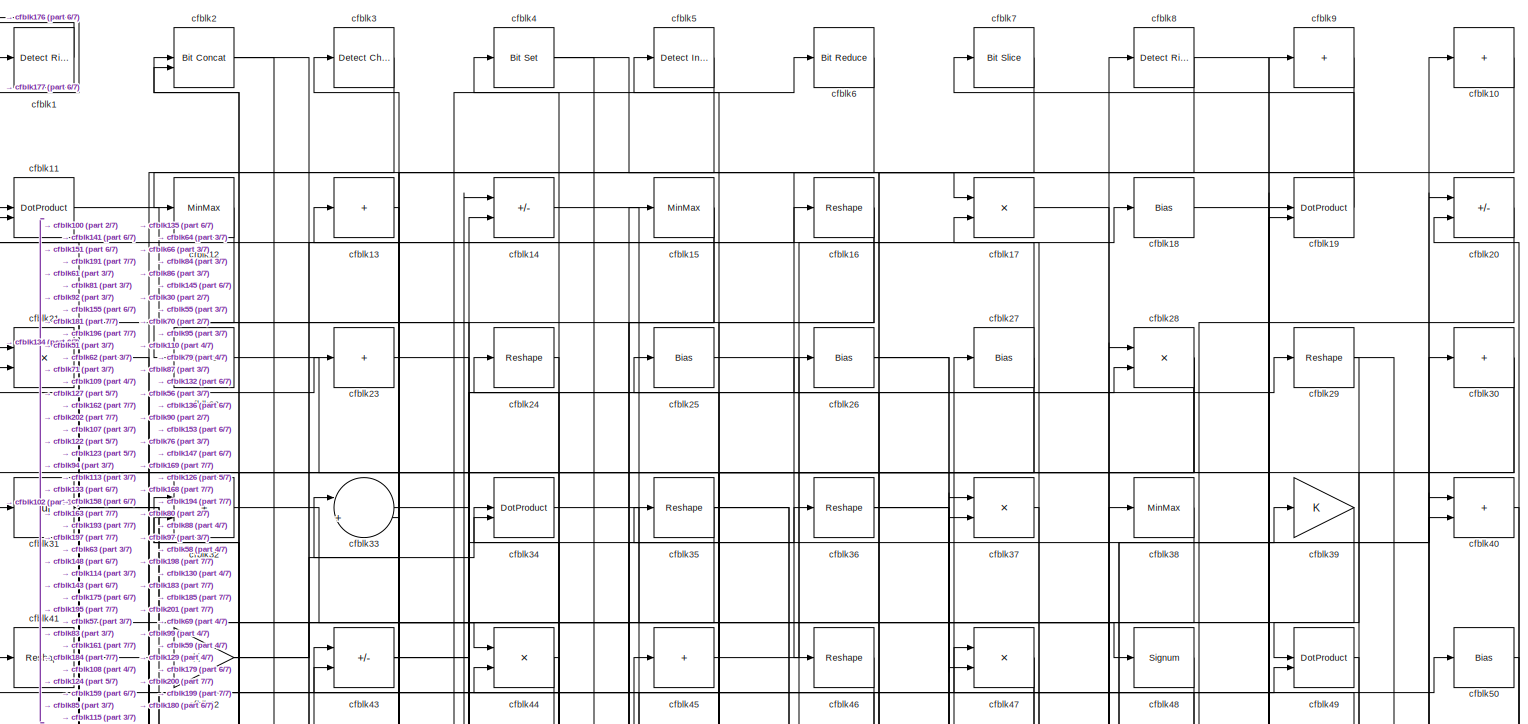
[diagram: root canvas - part 1/7, full width, top band]
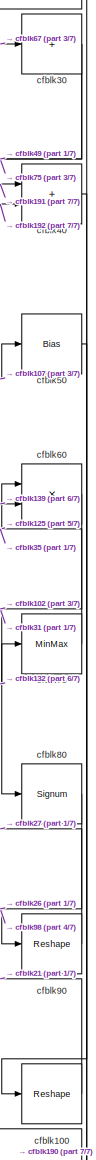
[diagram: root canvas - part 2/7, top right region]
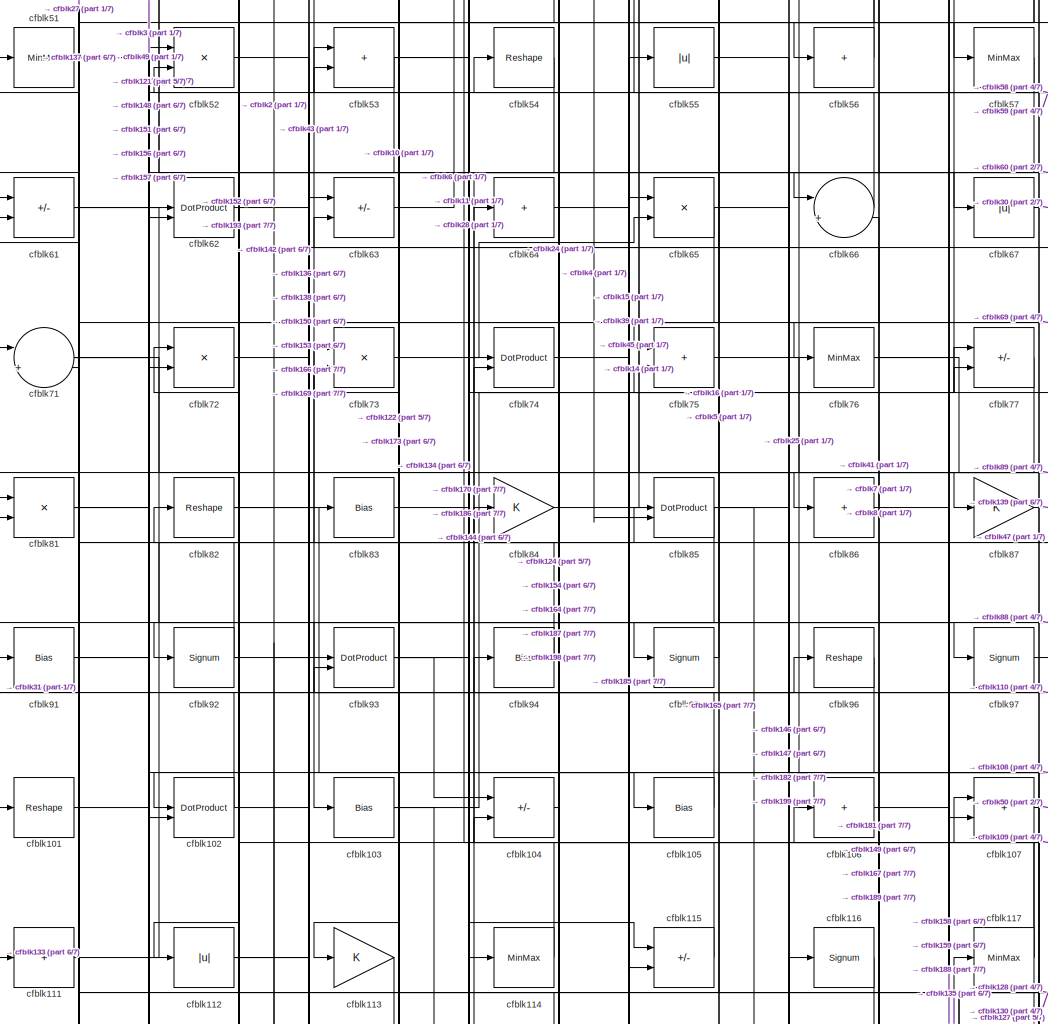
[diagram: root canvas - part 3/7, central region]
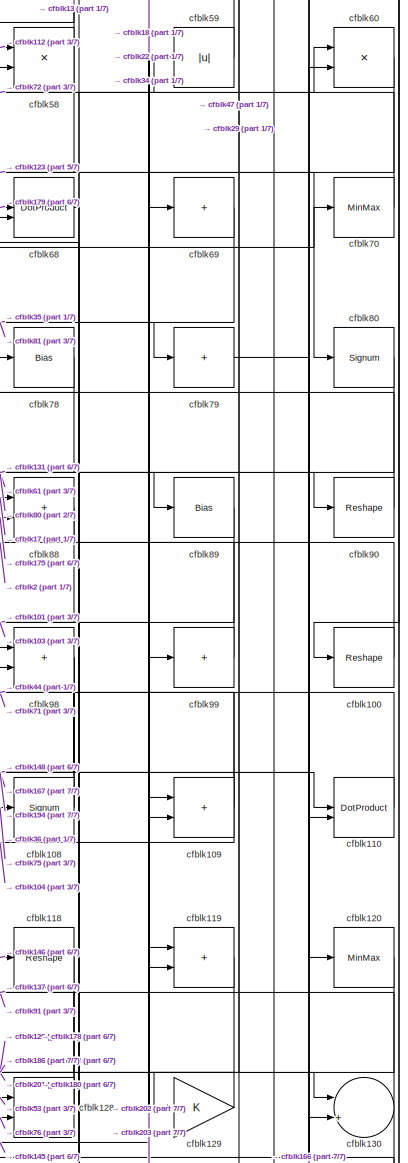
[diagram: root canvas - part 4/7, middle right region]
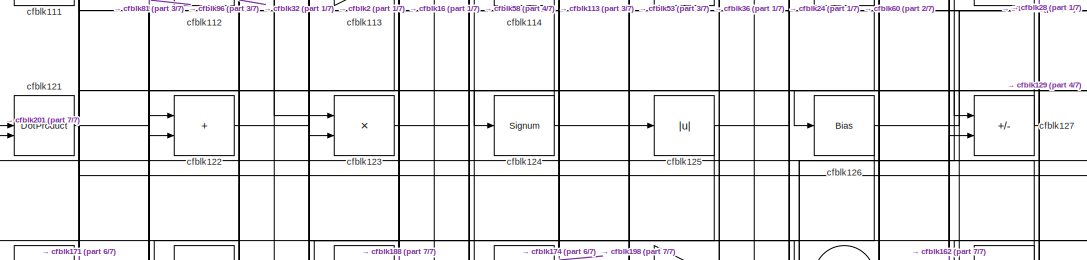
[diagram: root canvas - part 5/7, central region]
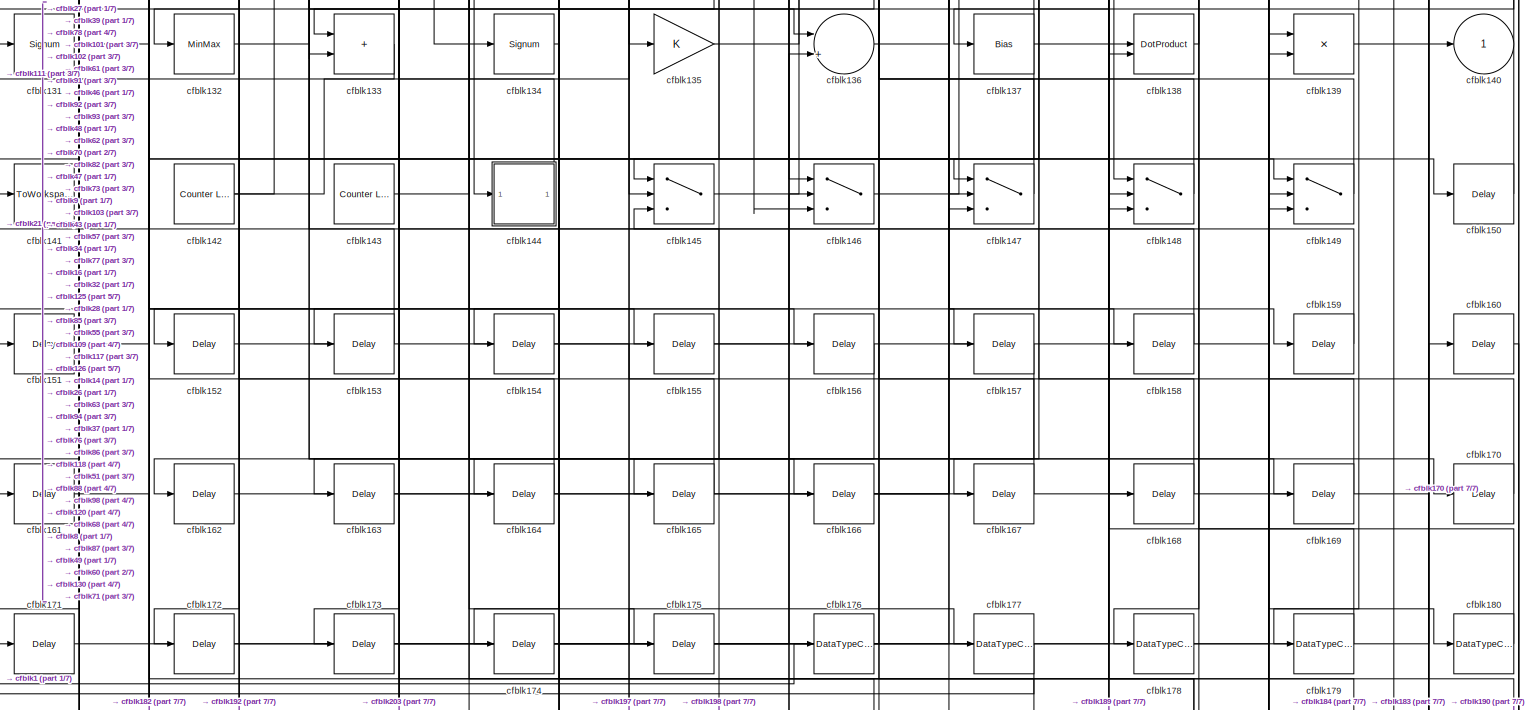
[diagram: root canvas - part 6/7, full width, bottom band]
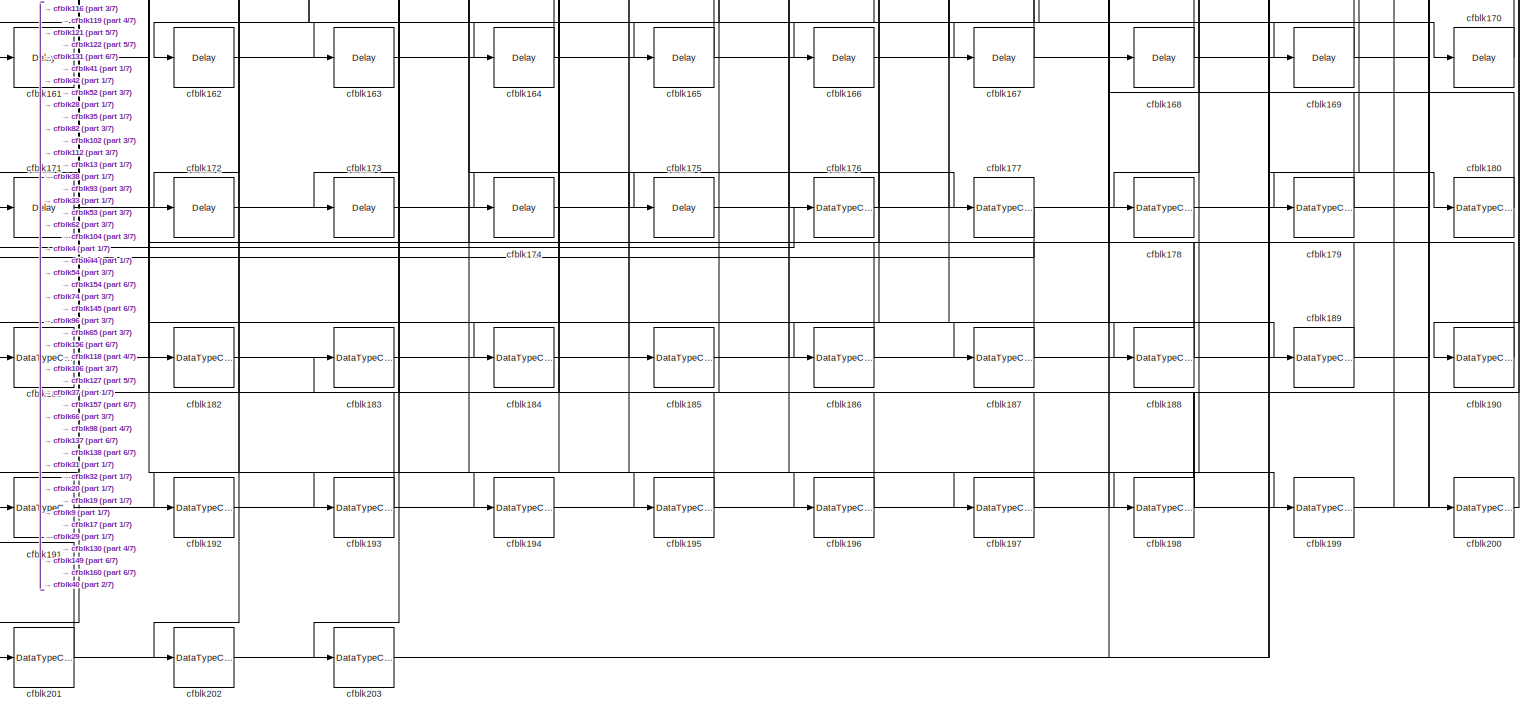
[diagram: root canvas - part 7/7, full width, bottom band]
MODEL slx_e7d8bf7e9333
KIND model
CONFIG AbsTol = auto
CONFIG EnableMultiTasking = off
CONFIG FixedStep = auto
CONFIG MaxStep = auto
CONFIG MinStep = auto
CONFIG RelTol = 1e-3
CONFIG SampleTimeConstraint = Unconstrained
CONFIG SolverName = VariableStepAuto
CONFIG StartTime = 0.0
CONFIG StopTime = 10.0
BLOCK [Reference] cfblk1  REF=hdlsllib/Logic and Bit
Operations/Detect Rise
Nonnegative
  SourceBlock = hdlsllib/Logic and Bit\nOperations/Detect Rise\nNonnegative
  SourceType = Detect Rise Nonnegative
BLOCK [Sum] cfblk10
  IconShape = rectangular
  Inputs = +
BLOCK [Reshape] cfblk100
BLOCK [Reshape] cfblk101
BLOCK [DotProduct] cfblk102
  OutDataTypeStr = Inherit: Inherit via internal rule
BLOCK [Bias] cfblk103
  Bias = 0.0
  SaturateOnIntegerOverflow = off
BLOCK [Sum] cfblk104
  IconShape = rectangular
  Inputs = +-
BLOCK [Bias] cfblk105
  Bias = 0.0
  SaturateOnIntegerOverflow = off
BLOCK [Sum] cfblk106
  IconShape = rectangular
  Inputs = +
BLOCK [Sum] cfblk107
  IconShape = rectangular
BLOCK [Signum] cfblk108
BLOCK [Sum] cfblk109
  IconShape = rectangular
BLOCK [DotProduct] cfblk11
  OutDataTypeStr = Inherit: Inherit via internal rule
BLOCK [DotProduct] cfblk110
  OutDataTypeStr = Inherit: Inherit via internal rule
BLOCK [Sum] cfblk111
  IconShape = rectangular
  Inputs = +
BLOCK [Abs] cfblk112
  SaturateOnIntegerOverflow = off
BLOCK [Gain] cfblk113
BLOCK [MinMax] cfblk114
BLOCK [Sum] cfblk115
  IconShape = rectangular
  Inputs = +-
BLOCK [Signum] cfblk116
BLOCK [MinMax] cfblk117
BLOCK [Reshape] cfblk118
BLOCK [Sum] cfblk119
  IconShape = rectangular
BLOCK [MinMax] cfblk12
BLOCK [MinMax] cfblk120
BLOCK [DotProduct] cfblk121
  OutDataTypeStr = Inherit: Inherit via internal rule
BLOCK [Sum] cfblk122
  IconShape = rectangular
BLOCK [Product] cfblk123
  Inputs = */
  RndMeth = Zero
  SaturateOnIntegerOverflow = on
BLOCK [Signum] cfblk124
BLOCK [Abs] cfblk125
  SaturateOnIntegerOverflow = off
BLOCK [Bias] cfblk126
  Bias = 0.0
  SaturateOnIntegerOverflow = off
BLOCK [Sum] cfblk127
  IconShape = rectangular
  Inputs = +-
BLOCK [Sum] cfblk128
  IconShape = rectangular
BLOCK [Gain] cfblk129
BLOCK [Sum] cfblk13
  IconShape = rectangular
  Inputs = +
BLOCK [Sum] cfblk130
  Inputs = |++
BLOCK [Signum] cfblk131
BLOCK [MinMax] cfblk132
BLOCK [Sum] cfblk133
  IconShape = rectangular
BLOCK [Signum] cfblk134
BLOCK [Gain] cfblk135
BLOCK [Sum] cfblk136
  Inputs = |++
BLOCK [Bias] cfblk137
  Bias = 0.0
  SaturateOnIntegerOverflow = off
BLOCK [DotProduct] cfblk138
  OutDataTypeStr = Inherit: Inherit via internal rule
BLOCK [Product] cfblk139
  Inputs = */
  RndMeth = Zero
  SaturateOnIntegerOverflow = on
BLOCK [Sum] cfblk14
  IconShape = rectangular
  Inputs = +-
BLOCK [Outport] cfblk140
  VectorParamsAs1DForOutWhenUnconnected = off
BLOCK [ToWorkspace] cfblk141
  MaxDataPoints = inf
  SampleTime = -1
  SaveFormat = Timeseries
  VariableName = simout
BLOCK [Reference] cfblk142  REF=hdlsllib/Sources/Counter
Limited
  SourceBlock = hdlsllib/Sources/Counter\nLimited
  SourceType = Counter Limited
BLOCK [Reference] cfblk143  REF=hdlsllib/Sources/Counter
Limited
  SourceBlock = hdlsllib/Sources/Counter\nLimited
  SourceType = Counter Limited
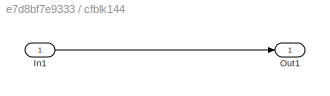
BLOCK [SubSystem] cfblk144
  LibrarySourceBlock = hdlsllib/Ports &\nSubsystems/Subsystem
BLOCK [Inport] cfblk144/In1
BLOCK [Outport] cfblk144/Out1
BLOCK [Switch] cfblk145
  InputSameDT = off
  SaturateOnIntegerOverflow = off
BLOCK [Switch] cfblk146
  InputSameDT = off
  SaturateOnIntegerOverflow = off
BLOCK [Switch] cfblk147
  InputSameDT = off
  SaturateOnIntegerOverflow = off
BLOCK [Switch] cfblk148
  InputSameDT = off
  SaturateOnIntegerOverflow = off
BLOCK [Switch] cfblk149
  InputSameDT = off
  SaturateOnIntegerOverflow = off
BLOCK [MinMax] cfblk15
BLOCK [Delay] cfblk150
  InputPortMap = u0
  SampleTime = 1
BLOCK [Delay] cfblk151
  InputPortMap = u0
  SampleTime = 1
BLOCK [Delay] cfblk152
  InputPortMap = u0
  SampleTime = 1
BLOCK [Delay] cfblk153
  InputPortMap = u0
  SampleTime = 1
BLOCK [Delay] cfblk154
  InputPortMap = u0
  SampleTime = 1
BLOCK [Delay] cfblk155
  InputPortMap = u0
  SampleTime = 1
BLOCK [Delay] cfblk156
  InputPortMap = u0
  SampleTime = 1
BLOCK [Delay] cfblk157
  InputPortMap = u0
  SampleTime = 1
BLOCK [Delay] cfblk158
  InputPortMap = u0
  SampleTime = 1
BLOCK [Delay] cfblk159
  InputPortMap = u0
  SampleTime = 1
BLOCK [Reshape] cfblk16
BLOCK [Delay] cfblk160
  InputPortMap = u0
  SampleTime = 1
BLOCK [Delay] cfblk161
  InputPortMap = u0
  SampleTime = 1
BLOCK [Delay] cfblk162
  InputPortMap = u0
  SampleTime = 1
BLOCK [Delay] cfblk163
  InputPortMap = u0
  SampleTime = 1
BLOCK [Delay] cfblk164
  InputPortMap = u0
  SampleTime = 1
BLOCK [Delay] cfblk165
  InputPortMap = u0
  SampleTime = 1
BLOCK [Delay] cfblk166
  InputPortMap = u0
  SampleTime = 1
BLOCK [Delay] cfblk167
  InputPortMap = u0
  SampleTime = 1
BLOCK [Delay] cfblk168
  InputPortMap = u0
  SampleTime = 1
BLOCK [Delay] cfblk169
  InputPortMap = u0
  SampleTime = 1
BLOCK [Product] cfblk17
  Inputs = */
  RndMeth = Zero
  SaturateOnIntegerOverflow = on
BLOCK [Delay] cfblk170
  InputPortMap = u0
  SampleTime = 1
BLOCK [Delay] cfblk171
  InputPortMap = u0
  SampleTime = 1
BLOCK [Delay] cfblk172
  InputPortMap = u0
  SampleTime = 1
BLOCK [Delay] cfblk173
  InputPortMap = u0
  SampleTime = 1
BLOCK [Delay] cfblk174
  InputPortMap = u0
  SampleTime = 1
BLOCK [Delay] cfblk175
  InputPortMap = u0
  SampleTime = 1
BLOCK [DataTypeConversion] cfblk176
  OutDataTypeStr = uint8
  RndMeth = Floor
  SaturateOnIntegerOverflow = off
BLOCK [DataTypeConversion] cfblk177
  OutDataTypeStr = uint8
  RndMeth = Floor
  SaturateOnIntegerOverflow = off
BLOCK [DataTypeConversion] cfblk178
  OutDataTypeStr = uint8
  RndMeth = Floor
  SaturateOnIntegerOverflow = off
BLOCK [DataTypeConversion] cfblk179
  OutDataTypeStr = uint8
  RndMeth = Floor
  SaturateOnIntegerOverflow = off
BLOCK [Bias] cfblk18
  Bias = 0.0
  SaturateOnIntegerOverflow = off
BLOCK [DataTypeConversion] cfblk180
  OutDataTypeStr = uint8
  RndMeth = Floor
  SaturateOnIntegerOverflow = off
BLOCK [DataTypeConversion] cfblk181
  OutDataTypeStr = uint8
  RndMeth = Floor
  SaturateOnIntegerOverflow = off
BLOCK [DataTypeConversion] cfblk182
  OutDataTypeStr = uint8
  RndMeth = Floor
  SaturateOnIntegerOverflow = off
BLOCK [DataTypeConversion] cfblk183
  OutDataTypeStr = uint8
  RndMeth = Floor
  SaturateOnIntegerOverflow = off
BLOCK [DataTypeConversion] cfblk184
  OutDataTypeStr = uint8
  RndMeth = Floor
  SaturateOnIntegerOverflow = off
BLOCK [DataTypeConversion] cfblk185
  OutDataTypeStr = uint8
  RndMeth = Floor
  SaturateOnIntegerOverflow = off
BLOCK [DataTypeConversion] cfblk186
  OutDataTypeStr = uint8
  RndMeth = Floor
  SaturateOnIntegerOverflow = off
BLOCK [DataTypeConversion] cfblk187
  OutDataTypeStr = uint8
  RndMeth = Floor
  SaturateOnIntegerOverflow = off
BLOCK [DataTypeConversion] cfblk188
  RndMeth = Floor
  SaturateOnIntegerOverflow = off
BLOCK [DataTypeConversion] cfblk189
  OutDataTypeStr = uint8
  RndMeth = Floor
  SaturateOnIntegerOverflow = off
BLOCK [DotProduct] cfblk19
  OutDataTypeStr = Inherit: Inherit via internal rule
BLOCK [DataTypeConversion] cfblk190
  OutDataTypeStr = uint8
  RndMeth = Floor
  SaturateOnIntegerOverflow = off
BLOCK [DataTypeConversion] cfblk191
  OutDataTypeStr = uint8
  RndMeth = Floor
  SaturateOnIntegerOverflow = off
BLOCK [DataTypeConversion] cfblk192
  OutDataTypeStr = uint8
  RndMeth = Floor
  SaturateOnIntegerOverflow = off
BLOCK [DataTypeConversion] cfblk193
  OutDataTypeStr = uint8
  RndMeth = Floor
  SaturateOnIntegerOverflow = off
BLOCK [DataTypeConversion] cfblk194
  OutDataTypeStr = uint8
  RndMeth = Floor
  SaturateOnIntegerOverflow = off
BLOCK [DataTypeConversion] cfblk195
  OutDataTypeStr = uint8
  RndMeth = Floor
  SaturateOnIntegerOverflow = off
BLOCK [DataTypeConversion] cfblk196
  OutDataTypeStr = uint8
  RndMeth = Floor
  SaturateOnIntegerOverflow = off
BLOCK [DataTypeConversion] cfblk197
  OutDataTypeStr = uint8
  RndMeth = Floor
  SaturateOnIntegerOverflow = off
BLOCK [DataTypeConversion] cfblk198
  RndMeth = Floor
  SaturateOnIntegerOverflow = off
BLOCK [DataTypeConversion] cfblk199
  OutDataTypeStr = uint8
  RndMeth = Floor
  SaturateOnIntegerOverflow = off
BLOCK [Reference] cfblk2  REF=hdlsllib/Logic and Bit
Operations/Bit Concat
  SourceBlock = hdlsllib/Logic and Bit\nOperations/Bit Concat
  SourceType = Bit Concat
BLOCK [Sum] cfblk20
  IconShape = rectangular
  Inputs = +-
BLOCK [DataTypeConversion] cfblk200
  OutDataTypeStr = uint8
  RndMeth = Floor
  SaturateOnIntegerOverflow = off
BLOCK [DataTypeConversion] cfblk201
  RndMeth = Floor
  SaturateOnIntegerOverflow = off
BLOCK [DataTypeConversion] cfblk202
  OutDataTypeStr = uint8
  RndMeth = Floor
  SaturateOnIntegerOverflow = off
BLOCK [DataTypeConversion] cfblk203
  OutDataTypeStr = uint8
  RndMeth = Floor
  SaturateOnIntegerOverflow = off
BLOCK [Product] cfblk21
  Inputs = */
  RndMeth = Zero
  SaturateOnIntegerOverflow = on
BLOCK [MinMax] cfblk22
BLOCK [Sum] cfblk23
  IconShape = rectangular
  Inputs = +
BLOCK [Reshape] cfblk24
BLOCK [Bias] cfblk25
  Bias = 0.0
  SaturateOnIntegerOverflow = off
BLOCK [Bias] cfblk26
  Bias = 0.0
  SaturateOnIntegerOverflow = off
BLOCK [Bias] cfblk27
  Bias = 0.0
  SaturateOnIntegerOverflow = off
BLOCK [Product] cfblk28
  Inputs = */
  RndMeth = Zero
  SaturateOnIntegerOverflow = on
BLOCK [Reshape] cfblk29
BLOCK [Reference] cfblk3  REF=simulink/Logic and Bit
Operations/Detect
Change
  LibrarySourceBlock = hdlsllib/Logic and Bit\nOperations/Detect\nChange
  SourceBlock = simulink/Logic and Bit\nOperations/Detect\nChange
  SourceType = Detect Change
BLOCK [Sum] cfblk30
  IconShape = rectangular
  Inputs = +
BLOCK [Abs] cfblk31
  SaturateOnIntegerOverflow = off
BLOCK [Sum] cfblk32
  IconShape = rectangular
BLOCK [Sum] cfblk33
  Inputs = |++
BLOCK [DotProduct] cfblk34
  OutDataTypeStr = Inherit: Inherit via internal rule
BLOCK [Reshape] cfblk35
BLOCK [Reshape] cfblk36
BLOCK [Product] cfblk37
  Inputs = */
  RndMeth = Zero
  SaturateOnIntegerOverflow = on
BLOCK [MinMax] cfblk38
BLOCK [Gain] cfblk39
BLOCK [Reference] cfblk4  REF=simulink/Logic and Bit
Operations/Bit Set
  LibrarySourceBlock = hdlsllib/Logic and Bit\nOperations/Bit Set
  SourceBlock = simulink/Logic and Bit\nOperations/Bit Set
  SourceType = Bit Set
BLOCK [Sum] cfblk40
  IconShape = rectangular
BLOCK [Reshape] cfblk41
BLOCK [Gain] cfblk42
BLOCK [Sum] cfblk43
  IconShape = rectangular
  Inputs = +-
BLOCK [Product] cfblk44
  Inputs = */
  RndMeth = Zero
  SaturateOnIntegerOverflow = on
BLOCK [Sum] cfblk45
  IconShape = rectangular
  Inputs = +
BLOCK [Reshape] cfblk46
BLOCK [Product] cfblk47
  Inputs = */
  RndMeth = Zero
  SaturateOnIntegerOverflow = on
BLOCK [Signum] cfblk48
BLOCK [DotProduct] cfblk49
  OutDataTypeStr = Inherit: Inherit via internal rule
BLOCK [Reference] cfblk5  REF=simulink/Logic and Bit
Operations/Detect
Increase
  LibrarySourceBlock = hdlsllib/Logic and Bit\nOperations/Detect\nIncrease
  SourceBlock = simulink/Logic and Bit\nOperations/Detect\nIncrease
  SourceType = Detect Increase
BLOCK [Bias] cfblk50
  Bias = 0.0
  SaturateOnIntegerOverflow = off
BLOCK [MinMax] cfblk51
BLOCK [Product] cfblk52
  Inputs = */
  RndMeth = Zero
  SaturateOnIntegerOverflow = on
BLOCK [Sum] cfblk53
  IconShape = rectangular
BLOCK [Reshape] cfblk54
BLOCK [Abs] cfblk55
  SaturateOnIntegerOverflow = off
BLOCK [Sum] cfblk56
  IconShape = rectangular
  Inputs = +
BLOCK [MinMax] cfblk57
BLOCK [Product] cfblk58
  Inputs = */
  RndMeth = Zero
  SaturateOnIntegerOverflow = on
BLOCK [Abs] cfblk59
  SaturateOnIntegerOverflow = off
BLOCK [Reference] cfblk6  REF=hdlsllib/Logic and Bit
Operations/Bit Reduce
  SourceBlock = hdlsllib/Logic and Bit\nOperations/Bit Reduce
  SourceType = Bit Reduce
BLOCK [Product] cfblk60
  Inputs = */
  RndMeth = Zero
  SaturateOnIntegerOverflow = on
BLOCK [Sum] cfblk61
  IconShape = rectangular
  Inputs = +-
BLOCK [DotProduct] cfblk62
  OutDataTypeStr = Inherit: Inherit via internal rule
BLOCK [Sum] cfblk63
  IconShape = rectangular
  Inputs = +-
BLOCK [Sum] cfblk64
  IconShape = rectangular
  Inputs = +
BLOCK [Product] cfblk65
  Inputs = */
  RndMeth = Zero
  SaturateOnIntegerOverflow = on
BLOCK [Sum] cfblk66
  Inputs = |++
BLOCK [Abs] cfblk67
  SaturateOnIntegerOverflow = off
BLOCK [DotProduct] cfblk68
  OutDataTypeStr = Inherit: Inherit via internal rule
BLOCK [Sum] cfblk69
  IconShape = rectangular
  Inputs = +
BLOCK [Reference] cfblk7  REF=hdlsllib/Logic and Bit
Operations/Bit Slice
  SourceBlock = hdlsllib/Logic and Bit\nOperations/Bit Slice
  SourceType = Bit Slice
BLOCK [MinMax] cfblk70
BLOCK [Sum] cfblk71
  Inputs = |++
BLOCK [Product] cfblk72
  Inputs = */
  RndMeth = Zero
  SaturateOnIntegerOverflow = on
BLOCK [Product] cfblk73
  Inputs = */
  RndMeth = Zero
  SaturateOnIntegerOverflow = on
BLOCK [DotProduct] cfblk74
  OutDataTypeStr = Inherit: Inherit via internal rule
BLOCK [Sum] cfblk75
  IconShape = rectangular
BLOCK [MinMax] cfblk76
BLOCK [Sum] cfblk77
  IconShape = rectangular
  Inputs = +-
BLOCK [Bias] cfblk78
  Bias = 0.0
  SaturateOnIntegerOverflow = off
BLOCK [Sum] cfblk79
  IconShape = rectangular
  Inputs = +
BLOCK [Reference] cfblk8  REF=hdlsllib/Logic and Bit
Operations/Detect Rise
Nonnegative
  SourceBlock = hdlsllib/Logic and Bit\nOperations/Detect Rise\nNonnegative
  SourceType = Detect Rise Nonnegative
BLOCK [Signum] cfblk80
BLOCK [Product] cfblk81
  Inputs = */
  RndMeth = Zero
  SaturateOnIntegerOverflow = on
BLOCK [Reshape] cfblk82
BLOCK [Bias] cfblk83
  Bias = 0.0
  SaturateOnIntegerOverflow = off
BLOCK [Gain] cfblk84
BLOCK [DotProduct] cfblk85
  OutDataTypeStr = Inherit: Inherit via internal rule
BLOCK [Sum] cfblk86
  IconShape = rectangular
  Inputs = +
BLOCK [Gain] cfblk87
BLOCK [Sum] cfblk88
  IconShape = rectangular
BLOCK [Bias] cfblk89
  Bias = 0.0
  SaturateOnIntegerOverflow = off
BLOCK [Sum] cfblk9
  IconShape = rectangular
  Inputs = +
BLOCK [Reshape] cfblk90
BLOCK [Bias] cfblk91
  Bias = 0.0
  SaturateOnIntegerOverflow = off
BLOCK [Signum] cfblk92
BLOCK [DotProduct] cfblk93
  OutDataTypeStr = Inherit: Inherit via internal rule
BLOCK [Bias] cfblk94
  Bias = 0.0
  SaturateOnIntegerOverflow = off
BLOCK [Signum] cfblk95
BLOCK [Reshape] cfblk96
BLOCK [Signum] cfblk97
BLOCK [Sum] cfblk98
  IconShape = rectangular
BLOCK [Sum] cfblk99
  IconShape = rectangular
  Inputs = +
LINE cfblk100:1 -> cfblk21:2
LINE cfblk101:1 -> cfblk149:1
NET cfblk102:1 -> cfblk169:1, cfblk31:1
NET cfblk103:1 -> cfblk134:1, cfblk77:1
LINE cfblk104:1 -> cfblk164:1
LINE cfblk105:1 -> cfblk73:1
LINE cfblk106:1 -> cfblk188:1
LINE cfblk107:1 -> cfblk50:1
NET cfblk108:1 -> cfblk44:2, cfblk71:1
NET cfblk109:1 -> cfblk104:2, cfblk2:2, cfblk58:2
LINE cfblk10:1 -> cfblk113:1
LINE cfblk110:1 -> cfblk72:1
LINE cfblk111:1 -> cfblk85:1
NET cfblk112:1 -> cfblk166:1, cfblk58:1
LINE cfblk113:1 -> cfblk122:2
LINE cfblk114:1 -> cfblk64:1
LINE cfblk115:1 -> cfblk24:1
LINE cfblk116:1 -> cfblk181:1
NET cfblk117:1 -> cfblk52:2, cfblk84:1
LINE cfblk118:1 -> cfblk186:1
LINE cfblk119:1 -> cfblk201:1
LINE cfblk11:1 -> cfblk114:1
LINE cfblk120:1 -> cfblk148:1
LINE cfblk121:1 -> cfblk96:1
LINE cfblk122:1 -> cfblk16:1
LINE cfblk123:1 -> cfblk36:1
NET cfblk124:1 -> cfblk125:1, cfblk53:1
NET cfblk125:1 -> cfblk171:1, cfblk60:1
NET cfblk126:1 -> cfblk174:1, cfblk28:1
NET cfblk127:1 -> cfblk107:1, cfblk32:1
NET cfblk128:1 -> cfblk61:2, cfblk91:1
LINE cfblk129:1 -> cfblk126:1
LINE cfblk12:1 -> cfblk22:1
NET cfblk130:1 -> cfblk137:1, cfblk75:2
LINE cfblk131:1 -> cfblk182:1
LINE cfblk132:1 -> cfblk70:1
LINE cfblk133:1 -> cfblk111:1
LINE cfblk134:1 -> cfblk21:1
LINE cfblk135:1 -> cfblk117:1
LINE cfblk136:1 -> cfblk37:1
NET cfblk137:1 -> cfblk172:1, cfblk189:1, cfblk51:1
LINE cfblk138:1 -> cfblk78:1
LINE cfblk139:1 -> cfblk60:2
LINE cfblk13:1 -> cfblk163:1
NET cfblk142:1 -> cfblk55:1, cfblk93:1
LINE cfblk143:1 -> cfblk14:2
LINE cfblk144/In1:1 -> cfblk144/Out1:1
LINE cfblk144:1 -> cfblk73:2
LINE cfblk145:1 -> cfblk109:1
LINE cfblk146:1 -> cfblk118:1
LINE cfblk147:1 -> cfblk63:2
LINE cfblk148:1 -> cfblk14:1
LINE cfblk149:1 -> cfblk94:1
LINE cfblk14:1 -> cfblk86:1
LINE cfblk150:1 -> cfblk71:2
LINE cfblk151:1 -> cfblk102:2
LINE cfblk152:1 -> cfblk136:2
LINE cfblk153:1 -> cfblk63:1
LINE cfblk154:1 -> cfblk197:1
LINE cfblk155:1 -> cfblk139:1
LINE cfblk156:1 -> cfblk192:1
LINE cfblk157:1 -> cfblk203:1
LINE cfblk158:1 -> cfblk43:2
LINE cfblk159:1 -> cfblk34:2
NET cfblk15:1 -> cfblk115:2, cfblk61:1
LINE cfblk160:1 -> cfblk183:1
LINE cfblk161:1 -> cfblk187:1
LINE cfblk162:1 -> cfblk127:2
LINE cfblk163:1 -> cfblk37:2
LINE cfblk164:1 -> cfblk62:1
LINE cfblk165:1 -> cfblk65:1
LINE cfblk166:1 -> cfblk130:2
LINE cfblk167:1 -> cfblk66:2
LINE cfblk168:1 -> cfblk32:2
LINE cfblk169:1 -> cfblk17:2
NET cfblk16:1 -> cfblk145:2, cfblk95:1
LINE cfblk170:1 -> cfblk149:2
LINE cfblk171:1 -> cfblk147:3
LINE cfblk172:1 -> cfblk146:2
LINE cfblk173:1 -> cfblk149:3
LINE cfblk174:1 -> cfblk177:1
LINE cfblk175:1 -> cfblk88:2
LINE cfblk176:1 -> cfblk26:1
LINE cfblk177:1 -> cfblk1:1
LINE cfblk178:1 -> cfblk140:1
LINE cfblk179:1 -> cfblk68:1
LINE cfblk17:1 -> cfblk88:1
LINE cfblk180:1 -> cfblk68:2
LINE cfblk181:1 -> cfblk42:1
LINE cfblk182:1 -> cfblk116:1
LINE cfblk183:1 -> cfblk19:1
LINE cfblk184:1 -> cfblk160:1
LINE cfblk185:1 -> cfblk19:2
LINE cfblk186:1 -> cfblk74:1
LINE cfblk187:1 -> cfblk74:2
NET cfblk188:1 -> cfblk122:1, cfblk93:2
LINE cfblk189:1 -> cfblk106:1
LINE cfblk18:1 -> cfblk130:1
LINE cfblk190:1 -> cfblk138:1
LINE cfblk191:1 -> cfblk40:1
LINE cfblk192:1 -> cfblk40:2
LINE cfblk193:1 -> cfblk82:1
LINE cfblk194:1 -> cfblk38:1
LINE cfblk195:1 -> cfblk4:1
LINE cfblk196:1 -> cfblk33:1
LINE cfblk197:1 -> cfblk33:2
NET cfblk198:1 -> cfblk121:2, cfblk145:3, cfblk52:1, cfblk54:1
LINE cfblk199:1 -> cfblk20:1
LINE cfblk19:1 -> cfblk7:1
LINE cfblk1:1 -> cfblk176:1
LINE cfblk200:1 -> cfblk20:2
NET cfblk201:1 -> cfblk121:1, cfblk98:2, cfblk9:1
LINE cfblk202:1 -> cfblk119:1
LINE cfblk203:1 -> cfblk119:2
LINE cfblk20:1 -> cfblk198:1
LINE cfblk21:1 -> cfblk155:1
LINE cfblk22:1 -> cfblk69:1
LINE cfblk23:1 -> cfblk57:1
LINE cfblk24:1 -> cfblk124:1
LINE cfblk25:1 -> cfblk87:1
NET cfblk26:1 -> cfblk48:1, cfblk90:1
NET cfblk27:1 -> cfblk11:2, cfblk141:1, cfblk81:2
NET cfblk28:1 -> cfblk145:1, cfblk162:1, cfblk191:1
NET cfblk29:1 -> cfblk129:1, cfblk200:1
NET cfblk2:1 -> cfblk107:2, cfblk123:1
NET cfblk30:1 -> cfblk49:1, cfblk75:1
NET cfblk31:1 -> cfblk168:1, cfblk80:1
LINE cfblk32:1 -> cfblk135:1
LINE cfblk33:1 -> cfblk195:1
LINE cfblk34:1 -> cfblk99:1
NET cfblk35:1 -> cfblk110:2, cfblk202:1, cfblk79:1
NET cfblk36:1 -> cfblk110:1, cfblk47:2
LINE cfblk37:1 -> cfblk147:1
LINE cfblk38:1 -> cfblk193:1
LINE cfblk39:1 -> cfblk151:1
LINE cfblk3:1 -> cfblk62:2
LINE cfblk40:1 -> cfblk190:1
LINE cfblk41:1 -> cfblk196:1
NET cfblk42:1 -> cfblk34:1, cfblk44:1
NET cfblk43:1 -> cfblk175:1, cfblk29:1, cfblk3:1
NET cfblk44:1 -> cfblk161:1, cfblk184:1
LINE cfblk45:1 -> cfblk18:1
LINE cfblk46:1 -> cfblk132:1
NET cfblk47:1 -> cfblk153:1, cfblk76:1
LINE cfblk48:1 -> cfblk133:2
LINE cfblk49:1 -> cfblk179:1
NET cfblk4:1 -> cfblk17:1, cfblk85:2
LINE cfblk50:1 -> cfblk100:1
NET cfblk51:1 -> cfblk15:1, cfblk23:1, cfblk67:1
LINE cfblk52:1 -> cfblk83:1
NET cfblk53:1 -> cfblk128:1, cfblk170:1, cfblk72:2
LINE cfblk54:1 -> cfblk92:1
NET cfblk55:1 -> cfblk147:2, cfblk5:1
LINE cfblk56:1 -> cfblk41:1
LINE cfblk57:1 -> cfblk144:1
NET cfblk58:1 -> cfblk123:2, cfblk13:1
LINE cfblk59:1 -> cfblk47:1
LINE cfblk5:1 -> cfblk12:1
LINE cfblk60:1 -> cfblk102:1
NET cfblk61:1 -> cfblk156:1, cfblk89:1
LINE cfblk62:1 -> cfblk136:1
LINE cfblk63:1 -> cfblk6:1
LINE cfblk64:1 -> cfblk39:1
NET cfblk65:1 -> cfblk112:1, cfblk199:1
LINE cfblk66:1 -> cfblk45:1
LINE cfblk67:1 -> cfblk30:1
LINE cfblk68:1 -> cfblk178:1
LINE cfblk69:1 -> cfblk81:1
LINE cfblk6:1 -> cfblk46:1
LINE cfblk70:1 -> cfblk35:1
NET cfblk71:1 -> cfblk49:2, cfblk53:2, cfblk97:1
LINE cfblk72:1 -> cfblk59:1
LINE cfblk73:1 -> cfblk65:2
LINE cfblk74:1 -> cfblk185:1
LINE cfblk75:1 -> cfblk108:1
NET cfblk76:1 -> cfblk128:2, cfblk159:1
LINE cfblk77:1 -> cfblk154:1
LINE cfblk78:1 -> cfblk131:1
LINE cfblk79:1 -> cfblk120:1
LINE cfblk7:1 -> cfblk66:1
LINE cfblk80:1 -> cfblk98:1
NET cfblk81:1 -> cfblk109:2, cfblk127:1
NET cfblk82:1 -> cfblk105:1, cfblk138:2
LINE cfblk83:1 -> cfblk28:2
LINE cfblk84:1 -> cfblk8:1
NET cfblk85:1 -> cfblk146:1, cfblk146:3, cfblk173:1
LINE cfblk86:1 -> cfblk158:1
LINE cfblk87:1 -> cfblk139:2
LINE cfblk88:1 -> cfblk101:1
LINE cfblk89:1 -> cfblk103:1
NET cfblk8:1 -> cfblk180:1, cfblk56:1
LINE cfblk90:1 -> cfblk27:1
NET cfblk91:1 -> cfblk148:2, cfblk157:1
NET cfblk92:1 -> cfblk11:1, cfblk150:1, cfblk152:1
NET cfblk93:1 -> cfblk104:1, cfblk115:1, cfblk77:2
LINE cfblk94:1 -> cfblk43:1
LINE cfblk95:1 -> cfblk25:1
LINE cfblk96:1 -> cfblk165:1
LINE cfblk97:1 -> cfblk10:1
NET cfblk98:1 -> cfblk148:3, cfblk167:1, cfblk194:1
LINE cfblk99:1 -> cfblk2:1
LINE cfblk9:1 -> cfblk133:1
note: NET lines group one-source signal fan-out (src -> all destinations, sorted); 1:1 wires keep LINE
